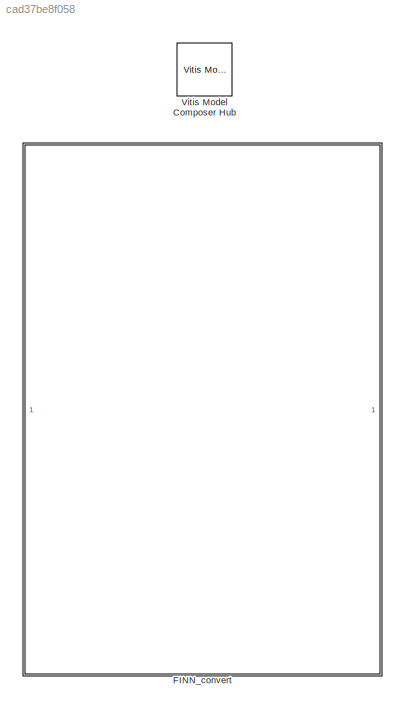
MODEL slx_cad37be8f058
KIND model
CONFIG AbsTol = auto
CONFIG EnableMultiTasking = off
CONFIG FixedStep = auto
CONFIG MaxStep = auto
CONFIG MinStep = auto
CONFIG PreLoadFcn = designHB
CONFIG RelTol = 1e-3
CONFIG SampleTimeConstraint = Unconstrained
CONFIG SolverName = VariableStepAuto
CONFIG StartTime = 0.0
CONFIG StopTime = 5/16e6
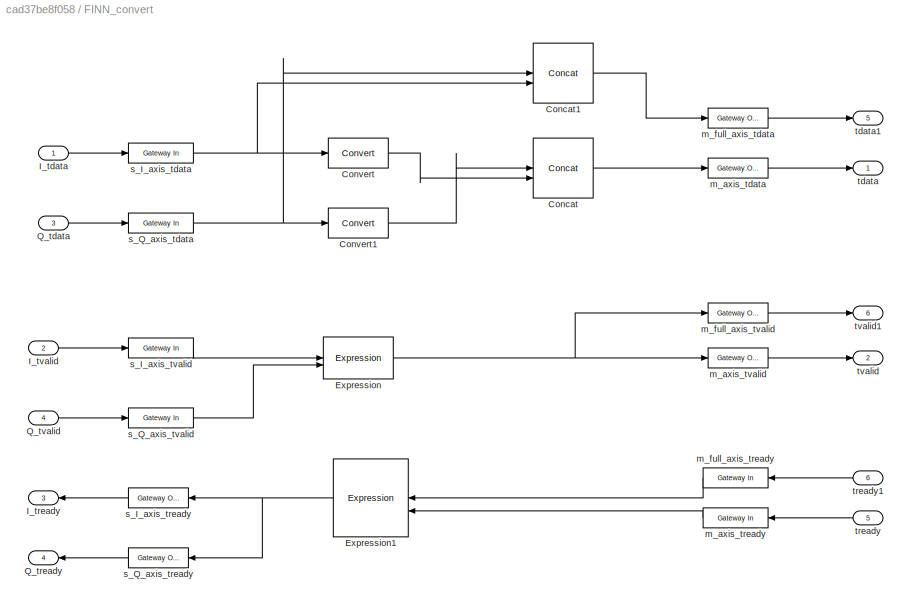
BLOCK [SubSystem] FINN_convert
  PortSchema = {"entries":[{"content":{"sides":[{"content":{"connectorIds":["In1","In2","Out3","In3","In4","Out4","Out5","Out6"]},"type":"ConnectorPlacement.EquallySpacedRectSide","uuid":"eb74909a-28d6-49bb-8ba1-8d6247087b66"},{"content":{"connectorIds":["Out1","In5","In6","Out2"],"side":"RIGHT"},"type":"ConnectorPlacement.EquallySpacedRectSide","uuid":"e220c643-32b2-4718-b969-1ae45378effa"},{"content":{"side":"...<+287ch>
BLOCK [Reference] FINN_convert/Concat  REF=hdlBasic/Concat
  SourceBlock = hdlBasic/Concat
  SourceType = Bus Concatenator Block
BLOCK [Reference] FINN_convert/Concat1  REF=hdlBasic/Concat
  SourceBlock = hdlBasic/Concat
  SourceType = Bus Concatenator Block
BLOCK [Reference] FINN_convert/Convert  REF=hdlBasic/Convert
  SourceBlock = hdlBasic/Convert
  SourceType = Type Converter Block
BLOCK [Reference] FINN_convert/Convert1  REF=hdlBasic/Convert
  SourceBlock = hdlBasic/Convert
  SourceType = Type Converter Block
BLOCK [Reference] FINN_convert/Expression  REF=hdlBasic/Expression
  SourceBlock = hdlBasic/Expression
  SourceType = Bitwise Expression Evaluator Block
BLOCK [Reference] FINN_convert/Expression1  REF=hdlBasic/Expression
  SourceBlock = hdlBasic/Expression
  SourceType = Bitwise Expression Evaluator Block
BLOCK [Inport] FINN_convert/I_tdata
BLOCK [Outport] FINN_convert/I_tready
  Port = 3
BLOCK [Inport] FINN_convert/I_tvalid
  Port = 2
BLOCK [Inport] FINN_convert/Q_tdata
  Port = 3
BLOCK [Outport] FINN_convert/Q_tready
  Port = 4
BLOCK [Inport] FINN_convert/Q_tvalid
  Port = 4
BLOCK [Reference] FINN_convert/m_axis_tdata  REF=hdlBasic/Gateway Out
  SourceBlock = hdlBasic/Gateway Out
  SourceType = Gateway Out Block
BLOCK [Reference] FINN_convert/m_axis_tready  REF=hdlBasic/Gateway In
  SourceBlock = hdlBasic/Gateway In
  SourceType = Gateway In Block
BLOCK [Reference] FINN_convert/m_axis_tvalid  REF=hdlBasic/Gateway Out
  SourceBlock = hdlBasic/Gateway Out
  SourceType = Gateway Out Block
BLOCK [Reference] FINN_convert/m_full_axis_tdata  REF=hdlBasic/Gateway Out
  SourceBlock = hdlBasic/Gateway Out
  SourceType = Gateway Out Block
BLOCK [Reference] FINN_convert/m_full_axis_tready  REF=hdlBasic/Gateway In
  SourceBlock = hdlBasic/Gateway In
  SourceType = Gateway In Block
BLOCK [Reference] FINN_convert/m_full_axis_tvalid  REF=hdlBasic/Gateway Out
  SourceBlock = hdlBasic/Gateway Out
  SourceType = Gateway Out Block
BLOCK [Reference] FINN_convert/s_I_axis_tdata  REF=hdlBasic/Gateway In
  SourceBlock = hdlBasic/Gateway In
  SourceType = Gateway In Block
BLOCK [Reference] FINN_convert/s_I_axis_tready  REF=hdlBasic/Gateway Out
  SourceBlock = hdlBasic/Gateway Out
  SourceType = Gateway Out Block
BLOCK [Reference] FINN_convert/s_I_axis_tvalid  REF=hdlBasic/Gateway In
  SourceBlock = hdlBasic/Gateway In
  SourceType = Gateway In Block
BLOCK [Reference] FINN_convert/s_Q_axis_tdata  REF=hdlBasic/Gateway In
  SourceBlock = hdlBasic/Gateway In
  SourceType = Gateway In Block
BLOCK [Reference] FINN_convert/s_Q_axis_tready  REF=hdlBasic/Gateway Out
  SourceBlock = hdlBasic/Gateway Out
  SourceType = Gateway Out Block
BLOCK [Reference] FINN_convert/s_Q_axis_tvalid  REF=hdlBasic/Gateway In
  SourceBlock = hdlBasic/Gateway In
  SourceType = Gateway In Block
BLOCK [Outport] FINN_convert/tdata
BLOCK [Outport] FINN_convert/tdata1
  Port = 5
BLOCK [Inport] FINN_convert/tready
  Port = 5
BLOCK [Inport] FINN_convert/tready1
  Port = 6
BLOCK [Outport] FINN_convert/tvalid
  Port = 2
BLOCK [Outport] FINN_convert/tvalid1
  Port = 6
BLOCK [Reference] Vitis Model Composer Hub  REF=vmcUtilities/Vitis Model Composer Hub
  SourceBlock = vmcUtilities/Vitis Model Composer Hub
  SourceType = VMC Hub
  Tag = genX
  UserDataPersistent = on
LINE FINN_convert/Concat1:1 -> FINN_convert/m_full_axis_tdata:1
LINE FINN_convert/Concat:1 -> FINN_convert/m_axis_tdata:1
LINE FINN_convert/Convert1:1 -> FINN_convert/Concat:1
LINE FINN_convert/Convert:1 -> FINN_convert/Concat:2
NET FINN_convert/Expression1:1 -> FINN_convert/s_I_axis_tready:1, FINN_convert/s_Q_axis_tready:1
NET FINN_convert/Expression:1 -> FINN_convert/m_axis_tvalid:1, FINN_convert/m_full_axis_tvalid:1
LINE FINN_convert/I_tdata:1 -> FINN_convert/s_I_axis_tdata:1
LINE FINN_convert/I_tvalid:1 -> FINN_convert/s_I_axis_tvalid:1
LINE FINN_convert/Q_tdata:1 -> FINN_convert/s_Q_axis_tdata:1
LINE FINN_convert/Q_tvalid:1 -> FINN_convert/s_Q_axis_tvalid:1
LINE FINN_convert/m_axis_tdata:1 -> FINN_convert/tdata:1
LINE FINN_convert/m_axis_tready:1 -> FINN_convert/Expression1:2
LINE FINN_convert/m_axis_tvalid:1 -> FINN_convert/tvalid:1
LINE FINN_convert/m_full_axis_tdata:1 -> FINN_convert/tdata1:1
LINE FINN_convert/m_full_axis_tready:1 -> FINN_convert/Expression1:1
LINE FINN_convert/m_full_axis_tvalid:1 -> FINN_convert/tvalid1:1
NET FINN_convert/s_I_axis_tdata:1 -> FINN_convert/Concat1:2, FINN_convert/Convert:1
LINE FINN_convert/s_I_axis_tready:1 -> FINN_convert/I_tready:1
LINE FINN_convert/s_I_axis_tvalid:1 -> FINN_convert/Expression:1
NET FINN_convert/s_Q_axis_tdata:1 -> FINN_convert/Concat1:1, FINN_convert/Convert1:1
LINE FINN_convert/s_Q_axis_tready:1 -> FINN_convert/Q_tready:1
LINE FINN_convert/s_Q_axis_tvalid:1 -> FINN_convert/Expression:2
LINE FINN_convert/tready1:1 -> FINN_convert/m_full_axis_tready:1
LINE FINN_convert/tready:1 -> FINN_convert/m_axis_tready:1
note: NET lines group one-source signal fan-out (src -> all destinations, sorted); 1:1 wires keep LINE
